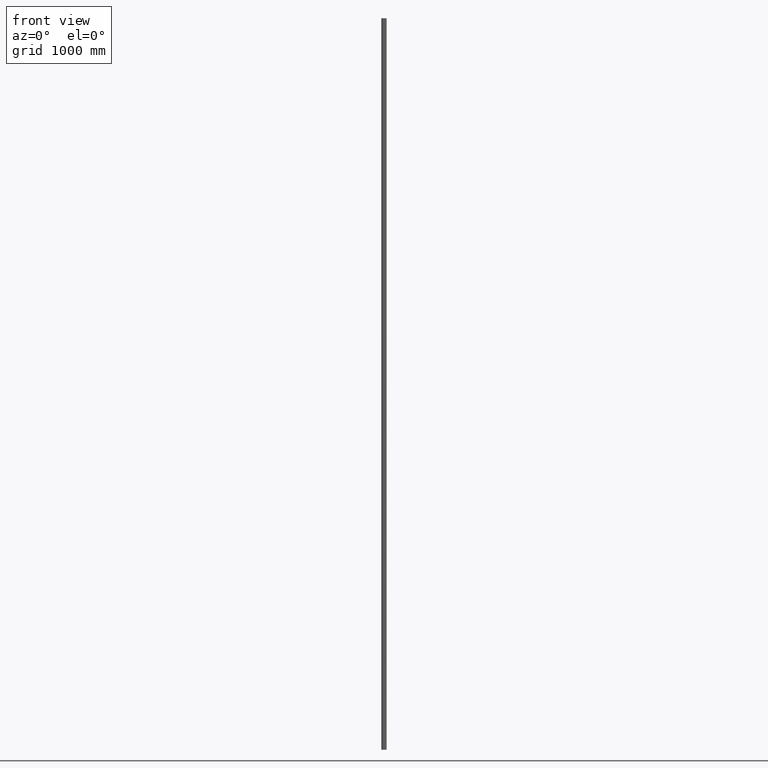
[diagram: clean part render]
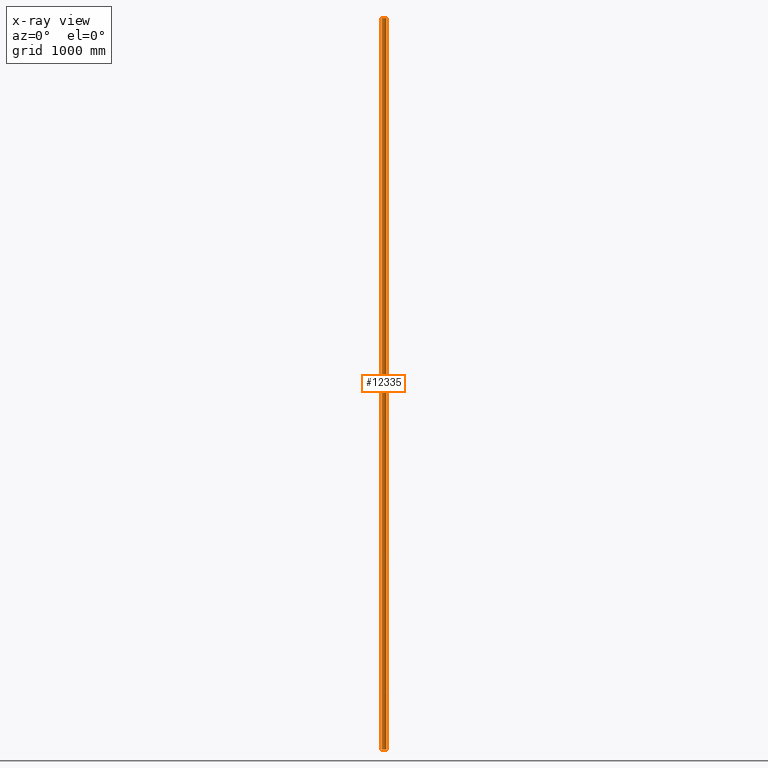
[diagram: x-ray — body ghosted, one internal face saturated and labeled with its STEP entity id]
A machine part, front view, then the same camera in x-ray: the body is ghosted and one INTERNAL B-rep face — a face not visible from any outside direction — is saturated and labeled: STEP entity #12335.
In plain terms, the highlighted cylindrical surface (edge-blend (fillet) strip) has radius 19.7 mm, axis along (0, 0, 1).
Its self-contained STEP definition (entity closure, byte-faithful):
#670 = VERTEX_POINT ( 'NONE', #9431 ) ;
#692 = CARTESIAN_POINT ( 'NONE',  ( 2.847925683768069846E-16, 14.34712514756876267, -3000.000000000000000 ) ) ;
#1105 = AXIS2_PLACEMENT_3D ( 'NONE', #14713, #3466, #13428 ) ;
#1219 = LINE ( 'NONE', #3497, #7659 ) ;
#1817 = EDGE_CURVE ( 'NONE', #2828, #13474, #1219, .T. ) ;
#1873 = EDGE_CURVE ( 'NONE', #670, #10438, #10750, .T. ) ;
#1901 = DIRECTION ( 'NONE',  ( 1.000000000000000000, 0.000000000000000000, 0.000000000000000000 ) ) ;
#2828 = VERTEX_POINT ( 'NONE', #13835 ) ;
#3466 = DIRECTION ( 'NONE',  ( 0.000000000000000000, 0.000000000000000000, 1.000000000000000000 ) ) ;
#3497 = CARTESIAN_POINT ( 'NONE',  ( 14.36458333333332504, 0.8657029058420951939, -3000.000000000000000 ) ) ;
#3704 = CIRCLE ( 'NONE', #1105, 19.70000000000000284 ) ;
#3823 = DIRECTION ( 'NONE',  ( 0.000000000000000000, 0.000000000000000000, 1.000000000000000000 ) ) ;
#5153 = EDGE_CURVE ( 'NONE', #13474, #10438, #12261, .T. ) ;
#5773 = EDGE_CURVE ( 'NONE', #2828, #670, #3704, .T. ) ;
#6098 = ORIENTED_EDGE ( 'NONE', *, *, #1817, .T. ) ;
#6242 = CARTESIAN_POINT ( 'NONE',  ( -14.36458333333333215, 0.8657029058421004120, -3000.000000000000000 ) ) ;
#6742 = CARTESIAN_POINT ( 'NONE',  ( -14.36458333333333215, 0.8657029058421004120, 3000.000000000000000 ) ) ;
#7659 = VECTOR ( 'NONE', #3823, 1000.000000000000000 ) ;
#7781 = CARTESIAN_POINT ( 'NONE',  ( 14.36458333333332504, 0.8657029058420951939, 3000.000000000000000 ) ) ;
#8468 = CYLINDRICAL_SURFACE ( 'NONE', #8787, 19.70000000000000284 ) ;
#8787 = AXIS2_PLACEMENT_3D ( 'NONE', #692, #10790, #1901 ) ;
#9401 = DIRECTION ( 'NONE',  ( 1.000000000000000000, 0.000000000000000000, 0.000000000000000000 ) ) ;
#9431 = CARTESIAN_POINT ( 'NONE',  ( -14.36458333333333215, 0.8657029058421004120, -3000.000000000000000 ) ) ;
#10239 = FACE_OUTER_BOUND ( 'NONE', #15462, .T. ) ;
#10438 = VERTEX_POINT ( 'NONE', #6742 ) ;
#10580 = VECTOR ( 'NONE', #12768, 1000.000000000000000 ) ;
#10653 = CARTESIAN_POINT ( 'NONE',  ( 2.847925683768069846E-16, 14.34712514756876267, 3000.000000000000000 ) ) ;
#10750 = LINE ( 'NONE', #6242, #10580 ) ;
#10790 = DIRECTION ( 'NONE',  ( 0.000000000000000000, 0.000000000000000000, 1.000000000000000000 ) ) ;
#12005 = DIRECTION ( 'NONE',  ( 0.000000000000000000, 0.000000000000000000, 1.000000000000000000 ) ) ;
#12261 = CIRCLE ( 'NONE', #15634, 19.70000000000000284 ) ;
#12335 = ADVANCED_FACE ( 'NONE', ( #10239 ), #8468, .F. ) ;
#12768 = DIRECTION ( 'NONE',  ( 0.000000000000000000, 0.000000000000000000, 1.000000000000000000 ) ) ;
#13428 = DIRECTION ( 'NONE',  ( 1.000000000000000000, 0.000000000000000000, 0.000000000000000000 ) ) ;
#13474 = VERTEX_POINT ( 'NONE', #7781 ) ;
#13835 = CARTESIAN_POINT ( 'NONE',  ( 14.36458333333332504, 0.8657029058420951939, -3000.000000000000000 ) ) ;
#14119 = ORIENTED_EDGE ( 'NONE', *, *, #5153, .T. ) ;
#14334 = ORIENTED_EDGE ( 'NONE', *, *, #5773, .F. ) ;
#14704 = ORIENTED_EDGE ( 'NONE', *, *, #1873, .F. ) ;
#14713 = CARTESIAN_POINT ( 'NONE',  ( 2.847925683768069846E-16, 14.34712514756876267, -3000.000000000000000 ) ) ;
#15462 = EDGE_LOOP ( 'NONE', ( #14119, #14704, #14334, #6098 ) ) ;
#15634 = AXIS2_PLACEMENT_3D ( 'NONE', #10653, #12005, #9401 ) ;